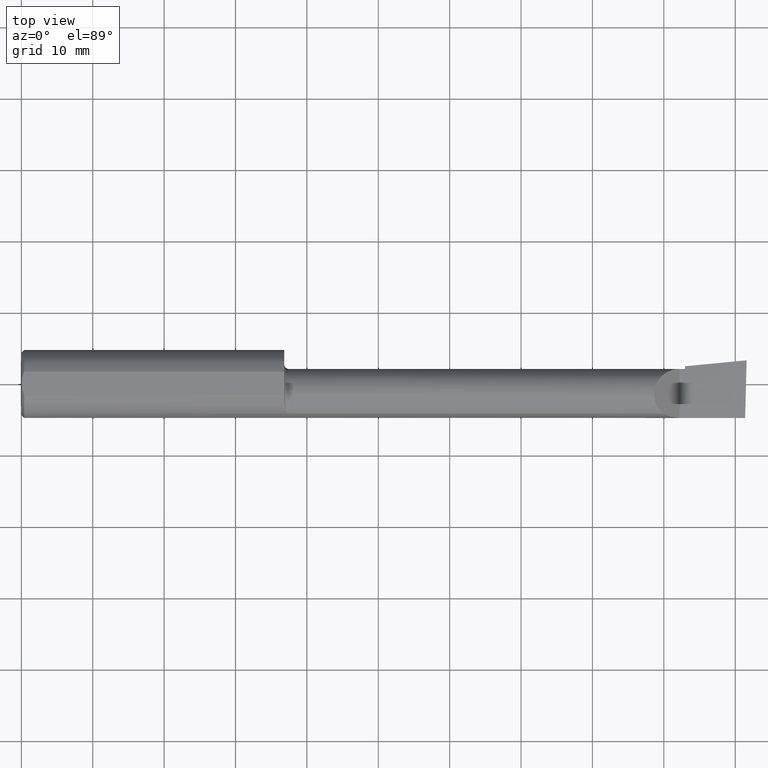
[diagram: clean part render]
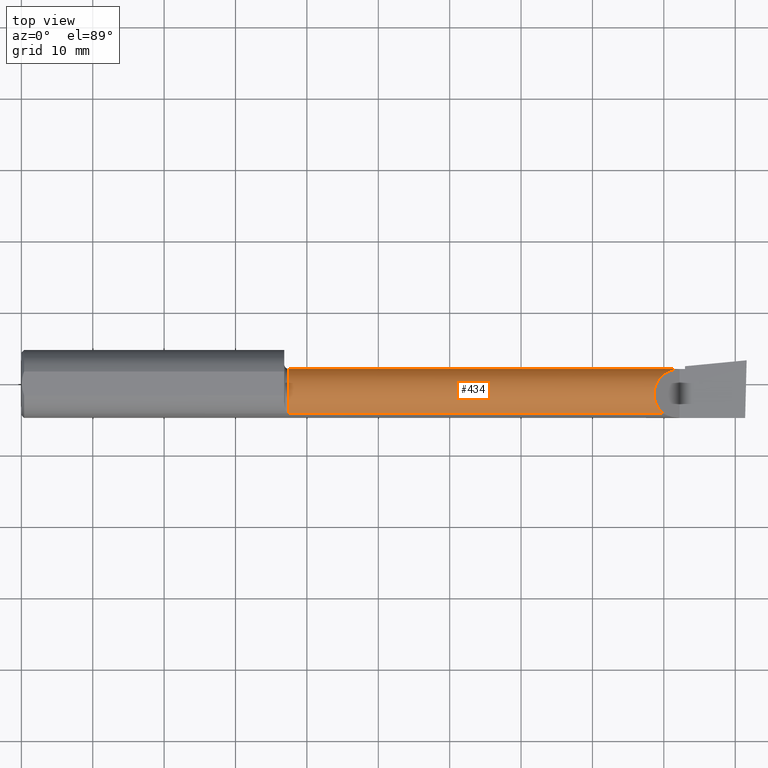
[diagram: same view with one face highlighted and labeled with its STEP entity id]
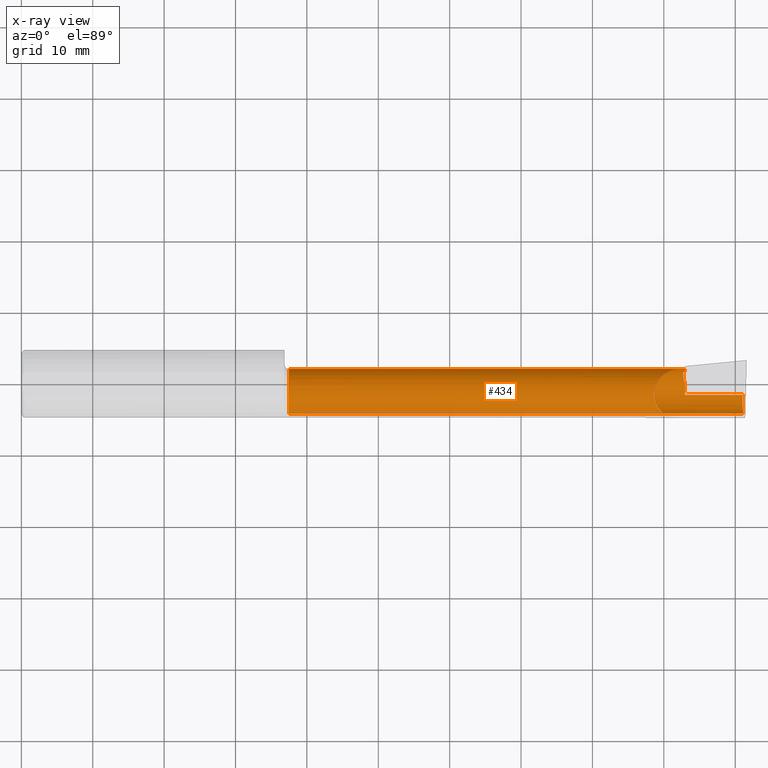
[diagram: x-ray of the same camera — body ghosted, the highlighted face saturated]
A machine part, top view. The second image highlights one B-rep face of the part: STEP entity #434.
The next image is the same camera in x-ray: the body ghosted, the highlighted face saturated — about 0% of this face is hidden behind the body in this view.
In plain terms, the highlighted cylindrical surface (edge-blend (fillet) strip) has radius 3.5573 mm, axis along (-1, -0, -0).
Its self-contained STEP definition (entity closure, byte-faithful):
#9 = VERTEX_POINT ( 'NONE', #42 ) ;
#17 = CARTESIAN_POINT ( 'NONE',  ( 3.654666039249971909, 0.01321247140458300766, -0.1209457786867195322 ) ) ;
#19 = DIRECTION ( 'NONE',  ( 0.000000000000000000, -1.000000000000000000, 0.000000000000000000 ) ) ;
#22 = CARTESIAN_POINT ( 'NONE',  ( 2.567499999999999893, -0.1635956445993030639, 0.09130436773856169530 ) ) ;
#32 = LINE ( 'NONE', #239, #567 ) ;
#37 = CARTESIAN_POINT ( 'NONE',  ( 3.653159806206771165, 0.06582018291673062682, -0.06657020401570151735 ) ) ;
#42 = CARTESIAN_POINT ( 'NONE',  ( 3.659999999999999698, 0.01441505128072246775, -0.1202356058309985848 ) ) ;
#44 = CIRCLE ( 'NONE', #401, 0.1400499999999997580 ) ;
#45 = CYLINDRICAL_SURFACE ( 'NONE', #121, 0.1400499999999999801 ) ;
#47 = DIRECTION ( 'NONE',  ( 1.000000000000000000, 4.268512490100411279E-18, 0.000000000000000000 ) ) ;
#48 = CARTESIAN_POINT ( 'NONE',  ( 3.649559965233992287, 0.06624107758111201505, -0.06577907292278803442 ) ) ;
#50 = CARTESIAN_POINT ( 'NONE',  ( 3.538695632261437130, -0.1635956445993028974, 0.09130436773856195898 ) ) ;
#57 = ORIENTED_EDGE ( 'NONE', *, *, #359, .F. ) ;
#64 = CIRCLE ( 'NONE', #474, 0.1400500000000002299 ) ;
#66 = EDGE_CURVE ( 'NONE', #313, #322, #447, .T. ) ;
#86 = ORIENTED_EDGE ( 'NONE', *, *, #586, .T. ) ;
#92 = DIRECTION ( 'NONE',  ( 4.268512490100411279E-18, -1.000000000000000000, 0.000000000000000000 ) ) ;
#95 = VERTEX_POINT ( 'NONE', #205 ) ;
#104 = CARTESIAN_POINT ( 'NONE',  ( 3.650743536083989937, 0.05394922433140202089, -0.08888335082963766398 ) ) ;
#108 = ORIENTED_EDGE ( 'NONE', *, *, #148, .T. ) ;
#110 =( BOUNDED_CURVE ( )  B_SPLINE_CURVE ( 3, ( #615, #161, #405, #512 ),
 .UNSPECIFIED., .F., .F. ) 
 B_SPLINE_CURVE_WITH_KNOTS ( ( 4, 4 ),
 ( 3.403716554974003383, 3.413688882750588238 ),
 .UNSPECIFIED. ) 
 CURVE ( )  GEOMETRIC_REPRESENTATION_ITEM ( )  RATIONAL_B_SPLINE_CURVE ( ( 1.000000000000000000, 0.9999917127403961103, 0.9999917127403961103, 1.000000000000000000 ) ) 
 REPRESENTATION_ITEM ( '' )  );
#121 = AXIS2_PLACEMENT_3D ( 'NONE', #149, #535, #92 ) ;
#122 = DIRECTION ( 'NONE',  ( -1.000000000000000000, -4.268512490100411279E-18, -0.000000000000000000 ) ) ;
#127 = VERTEX_POINT ( 'NONE', #310 ) ;
#136 = VERTEX_POINT ( 'NONE', #169 ) ;
#140 = CARTESIAN_POINT ( 'NONE',  ( 3.659999999999999698, -0.05739999999999999963, 0.000000000000000000 ) ) ;
#148 = EDGE_CURVE ( 'NONE', #127, #253, #492, .T. ) ;
#149 = CARTESIAN_POINT ( 'NONE',  ( 0.000000000000000000, -0.05740000000000001351, 0.000000000000000000 ) ) ;
#154 = CARTESIAN_POINT ( 'NONE',  ( 3.421229036482944075, -0.06260079402492414735, 0.2087709635170538203 ) ) ;
#156 =( BOUNDED_CURVE ( )  B_SPLINE_CURVE ( 3, ( #48, #37, #637, #192 ),
 .UNSPECIFIED., .F., .T. ) 
 B_SPLINE_CURVE_WITH_KNOTS ( ( 4, 4 ),
 ( 2.860273215522871393, 2.879468752205587290 ),
 .UNSPECIFIED. ) 
 CURVE ( )  GEOMETRIC_REPRESENTATION_ITEM ( )  RATIONAL_B_SPLINE_CURVE ( ( 1.000000000000000000, 0.9999692945166647196, 0.9999692945166647196, 1.000000000000000000 ) ) 
 REPRESENTATION_ITEM ( '' )  );
#161 = CARTESIAN_POINT ( 'NONE',  ( 3.658254417281638915, 0.01401537333401193727, -0.1204743278970653309 ) ) ;
#164 = CARTESIAN_POINT ( 'NONE',  ( 3.981080296960509468, -0.1635956445993030639, -0.09130436773856169530 ) ) ;
#168 = LINE ( 'NONE', #360, #578 ) ;
#169 = CARTESIAN_POINT ( 'NONE',  ( 3.977873865042411250, -0.05739999999999999963, -0.1400500000000000633 ) ) ;
#176 = DIRECTION ( 'NONE',  ( -1.000000000000000000, 5.691349986800549142E-18, -0.000000000000000000 ) ) ;
#177 = VERTEX_POINT ( 'NONE', #304 ) ;
#179 = CARTESIAN_POINT ( 'NONE',  ( 3.629999999999999893, 0.08264999999999983471, -1.383850883036508279E-16 ) ) ;
#192 = CARTESIAN_POINT ( 'NONE',  ( 3.659999999999999698, 0.06495571228477967085, -0.06814016562413281741 ) ) ;
#195 = EDGE_CURVE ( 'NONE', #9, #253, #110, .T. ) ;
#199 = CARTESIAN_POINT ( 'NONE',  ( 3.659999999999999698, 0.06495571228477967085, -0.06814016562413281741 ) ) ;
#205 = CARTESIAN_POINT ( 'NONE',  ( 3.538695632261437130, -0.1635956445993028974, 0.09130436773856195898 ) ) ;
#206 = VECTOR ( 'NONE', #47, 39.37007874015748143 ) ;
#224 = ORIENTED_EDGE ( 'NONE', *, *, #308, .F. ) ;
#232 = CARTESIAN_POINT ( 'NONE',  ( 3.654666039249971909, 0.01321247140458300766, -0.1209457786867195322 ) ) ;
#238 = EDGE_CURVE ( 'NONE', #9, #177, #546, .T. ) ;
#239 = CARTESIAN_POINT ( 'NONE',  ( 4.000000000000000000, -0.05739999999999999963, -0.1400500000000000633 ) ) ;
#240 = ORIENTED_EDGE ( 'NONE', *, *, #404, .T. ) ;
#241 = CARTESIAN_POINT ( 'NONE',  ( 3.981080296960509468, -0.1635956445993030639, -0.09130436773856169530 ) ) ;
#246 =( BOUNDED_CURVE ( )  B_SPLINE_CURVE ( 3, ( #50, #154, #611, #561 ),
 .UNSPECIFIED., .F., .F. ) 
 B_SPLINE_CURVE_WITH_KNOTS ( ( 4, 4 ),
 ( 5.422530673488459740, 7.853981633974483678 ),
 .UNSPECIFIED. ) 
 CURVE ( )  GEOMETRIC_REPRESENTATION_ITEM ( )  RATIONAL_B_SPLINE_CURVE ( ( 1.000000000000000000, 0.5651045289226863666, 0.5651045289226863666, 1.000000000000000000 ) ) 
 REPRESENTATION_ITEM ( '' )  );
#252 = DIRECTION ( 'NONE',  ( 0.000000000000000000, -1.000000000000000000, 0.000000000000000000 ) ) ;
#253 = VERTEX_POINT ( 'NONE', #232 ) ;
#268 = VECTOR ( 'NONE', #627, 39.37007874015748143 ) ;
#272 = DIRECTION ( 'NONE',  ( 0.000000000000000000, -1.000000000000000000, 0.000000000000000000 ) ) ;
#275 = DIRECTION ( 'NONE',  ( -1.000000000000000000, -4.268512490100411279E-18, -0.000000000000000000 ) ) ;
#283 = EDGE_CURVE ( 'NONE', #285, #95, #426, .T. ) ;
#285 = VERTEX_POINT ( 'NONE', #321 ) ;
#303 = DIRECTION ( 'NONE',  ( -1.000000000000000000, -4.268512490100411279E-18, -0.000000000000000000 ) ) ;
#304 = CARTESIAN_POINT ( 'NONE',  ( 3.659999999999999698, -0.05739999999999999963, -0.1400500000000000633 ) ) ;
#308 = EDGE_CURVE ( 'NONE', #285, #527, #44, .T. ) ;
#310 = CARTESIAN_POINT ( 'NONE',  ( 3.649559965233992287, 0.06624107758111201505, -0.06577907292278803442 ) ) ;
#313 = VERTEX_POINT ( 'NONE', #179 ) ;
#317 = ORIENTED_EDGE ( 'NONE', *, *, #238, .T. ) ;
#321 = CARTESIAN_POINT ( 'NONE',  ( 1.474999999999999867, -0.1635956445993032859, 0.09130436773856114019 ) ) ;
#322 = VERTEX_POINT ( 'NONE', #572 ) ;
#325 = CARTESIAN_POINT ( 'NONE',  ( 1.474999999999999867, -0.05740000000000000657, 0.000000000000000000 ) ) ;
#334 = ORIENTED_EDGE ( 'NONE', *, *, #283, .T. ) ;
#341 = AXIS2_PLACEMENT_3D ( 'NONE', #566, #122, #19 ) ;
#357 = CARTESIAN_POINT ( 'NONE',  ( 3.976787929832031221, -0.09887019258091184204, -0.1400500000000000078 ) ) ;
#359 = EDGE_CURVE ( 'NONE', #136, #177, #32, .T. ) ;
#360 = CARTESIAN_POINT ( 'NONE',  ( 2.567499999999999893, -0.1635956445993030639, -0.09130436773856169530 ) ) ;
#365 = CARTESIAN_POINT ( 'NONE',  ( 3.977873865042411250, -0.05739999999999999963, -0.1400500000000000633 ) ) ;
#367 = CARTESIAN_POINT ( 'NONE',  ( 3.977925907309857845, -0.1365595166907235813, -0.1227499502647107499 ) ) ;
#401 = AXIS2_PLACEMENT_3D ( 'NONE', #325, #275, #272 ) ;
#404 = EDGE_CURVE ( 'NONE', #322, #421, #64, .T. ) ;
#405 = CARTESIAN_POINT ( 'NONE',  ( 3.656476415630202759, 0.01361451005324072934, -0.1207110541441176188 ) ) ;
#413 = EDGE_LOOP ( 'NONE', ( #573, #553, #224, #334, #86, #534, #240, #437, #108, #635, #317, #57 ) ) ;
#421 = VERTEX_POINT ( 'NONE', #199 ) ;
#426 = LINE ( 'NONE', #22, #268 ) ;
#434 = ADVANCED_FACE ( 'NONE', ( #583 ), #45, .T. ) ;
#437 = ORIENTED_EDGE ( 'NONE', *, *, #502, .F. ) ;
#440 = DIRECTION ( 'NONE',  ( -1.000000000000000000, -4.268512490100411279E-18, -0.000000000000000000 ) ) ;
#443 = CARTESIAN_POINT ( 'NONE',  ( -5.978051742385467392E-19, 0.08264999999999995961, 1.790477306702064235E-16 ) ) ;
#447 = LINE ( 'NONE', #443, #206 ) ;
#474 = AXIS2_PLACEMENT_3D ( 'NONE', #140, #440, #252 ) ;
#492 =( BOUNDED_CURVE ( )  B_SPLINE_CURVE ( 3, ( #602, #104, #515, #17 ),
 .UNSPECIFIED., .F., .T. ) 
 B_SPLINE_CURVE_WITH_KNOTS ( ( 4, 4 ),
 ( 0.4889314207010869717, 1.042347087928805260 ),
 .UNSPECIFIED. ) 
 CURVE ( )  GEOMETRIC_REPRESENTATION_ITEM ( )  RATIONAL_B_SPLINE_CURVE ( ( 1.000000000000000000, 0.9746400248777664643, 0.9746400248777664643, 1.000000000000000000 ) ) 
 REPRESENTATION_ITEM ( '' )  );
#501 = VERTEX_POINT ( 'NONE', #241 ) ;
#502 = EDGE_CURVE ( 'NONE', #127, #421, #156, .T. ) ;
#508 = CARTESIAN_POINT ( 'NONE',  ( 1.474999999999999867, -0.1635956445993035080, -0.09130436773856089039 ) ) ;
#512 = CARTESIAN_POINT ( 'NONE',  ( 3.654666039249971909, 0.01321247140458300766, -0.1209457786867195322 ) ) ;
#515 = CARTESIAN_POINT ( 'NONE',  ( 3.652489847161463299, 0.03581309036639291482, -0.1077507289917614269 ) ) ;
#527 = VERTEX_POINT ( 'NONE', #508 ) ;
#534 = ORIENTED_EDGE ( 'NONE', *, *, #66, .T. ) ;
#535 = DIRECTION ( 'NONE',  ( -1.000000000000000000, -4.268512490100411279E-18, -0.000000000000000000 ) ) ;
#546 = CIRCLE ( 'NONE', #341, 0.1400500000000002299 ) ;
#553 = ORIENTED_EDGE ( 'NONE', *, *, #565, .T. ) ;
#561 = CARTESIAN_POINT ( 'NONE',  ( 3.629999999999999893, 0.08264999999999983471, -1.383850883036508279E-16 ) ) ;
#565 = EDGE_CURVE ( 'NONE', #501, #527, #168, .T. ) ;
#566 = CARTESIAN_POINT ( 'NONE',  ( 3.659999999999999698, -0.05739999999999999963, 0.000000000000000000 ) ) ;
#567 = VECTOR ( 'NONE', #176, 39.37007874015748143 ) ;
#572 = CARTESIAN_POINT ( 'NONE',  ( 3.659999999999999698, 0.08265000000000022329, 1.790477306702067193E-16 ) ) ;
#573 = ORIENTED_EDGE ( 'NONE', *, *, #618, .F. ) ;
#578 = VECTOR ( 'NONE', #303, 39.37007874015748143 ) ;
#583 = FACE_OUTER_BOUND ( 'NONE', #413, .T. ) ;
#586 = EDGE_CURVE ( 'NONE', #95, #313, #246, .T. ) ;
#602 = CARTESIAN_POINT ( 'NONE',  ( 3.649559965233992287, 0.06624107758111201505, -0.06577907292278803442 ) ) ;
#611 = CARTESIAN_POINT ( 'NONE',  ( 3.475085956200449022, 0.08265000000000011227, 0.1549140437995492614 ) ) ;
#615 = CARTESIAN_POINT ( 'NONE',  ( 3.659999999999999698, 0.01441505128072246775, -0.1202356058309985848 ) ) ;
#617 =( BOUNDED_CURVE ( )  B_SPLINE_CURVE ( 3, ( #164, #367, #357, #365 ),
 .UNSPECIFIED., .F., .F. ) 
 B_SPLINE_CURVE_WITH_KNOTS ( ( 4, 4 ),
 ( 5.632580117768153372, 6.493234751459281640 ),
 .UNSPECIFIED. ) 
 CURVE ( )  GEOMETRIC_REPRESENTATION_ITEM ( )  RATIONAL_B_SPLINE_CURVE ( ( 1.000000000000000000, 0.9392195014330942948, 0.9392195014330942948, 1.000000000000000000 ) ) 
 REPRESENTATION_ITEM ( '' )  );
#618 = EDGE_CURVE ( 'NONE', #501, #136, #617, .T. ) ;
#627 = DIRECTION ( 'NONE',  ( 1.000000000000000000, 4.268512490100411279E-18, 0.000000000000000000 ) ) ;
#635 = ORIENTED_EDGE ( 'NONE', *, *, #195, .F. ) ;
#637 = CARTESIAN_POINT ( 'NONE',  ( 3.656639924654159657, 0.06539171466162829738, -0.06735725908305603693 ) ) ;